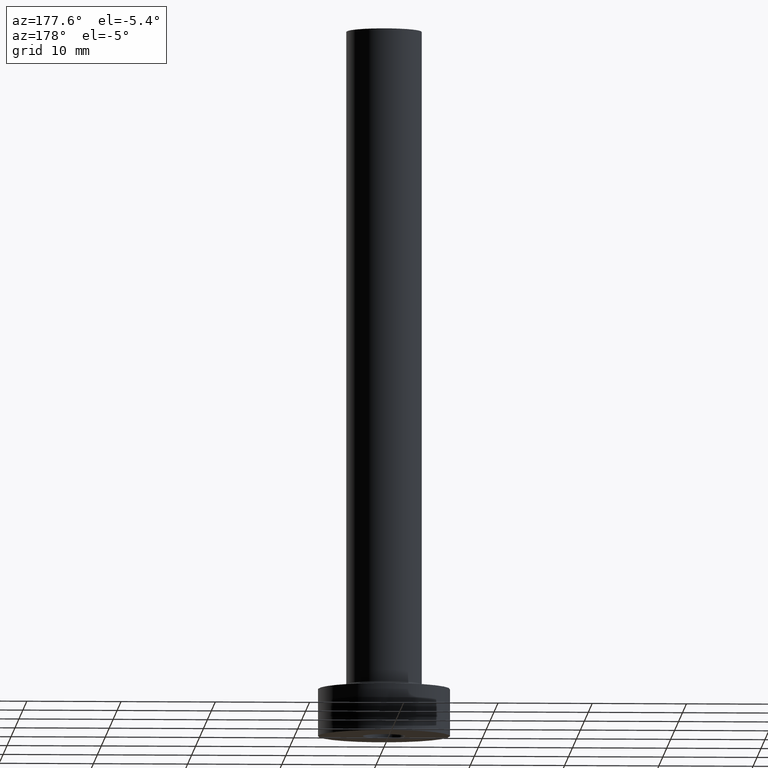
[diagram: clean part render]
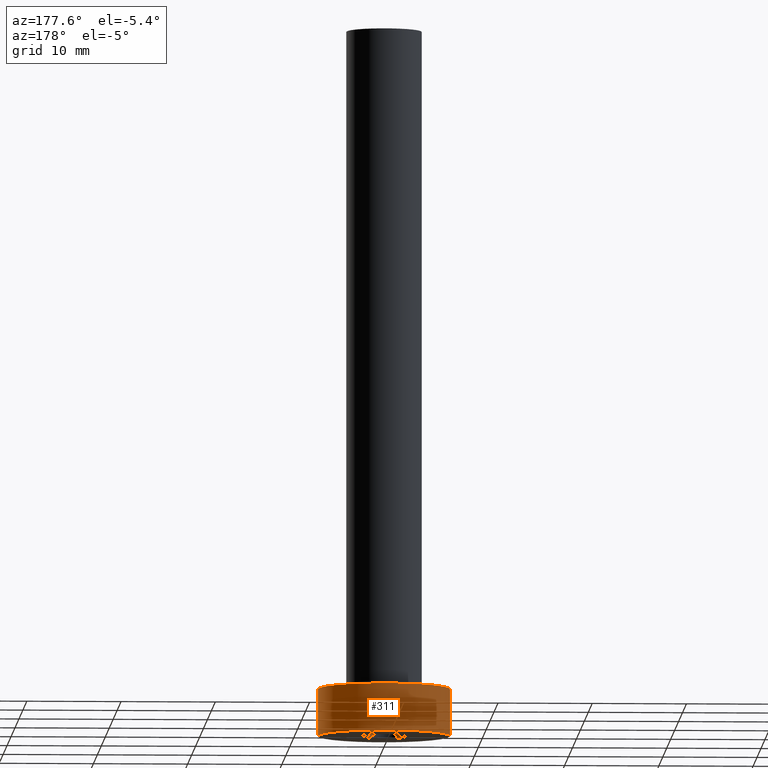
[diagram: same view with one face highlighted and labeled with its STEP entity id]
A machine part, auxiliary view. The second image highlights one B-rep face of the part: STEP entity #311.
In plain terms, the highlighted cylindrical surface (partial cylindrical patch) has radius 7 mm, axis along (-0, -0, -1).
Its self-contained STEP definition (entity closure, byte-faithful):
#37 = ORIENTED_EDGE ( 'NONE', *, *, #124, .T. ) ;
#44 = EDGE_CURVE ( 'NONE', #303, #93, #165, .T. ) ;
#67 = CIRCLE ( 'NONE', #238, 7.000000000000000000 ) ;
#81 = FACE_OUTER_BOUND ( 'NONE', #274, .T. ) ;
#82 = DIRECTION ( 'NONE',  ( -0.000000000000000000, -0.000000000000000000, -1.000000000000000000 ) ) ;
#93 = VERTEX_POINT ( 'NONE', #256 ) ;
#124 = EDGE_CURVE ( 'NONE', #392, #201, #67, .T. ) ;
#130 = DIRECTION ( 'NONE',  ( 0.000000000000000000, 0.000000000000000000, 1.000000000000000000 ) ) ;
#158 = DIRECTION ( 'NONE',  ( -1.000000000000000000, 0.000000000000000000, 0.000000000000000000 ) ) ;
#165 = CIRCLE ( 'NONE', #285, 7.000000000000000000 ) ;
#180 = EDGE_CURVE ( 'NONE', #303, #392, #228, .T. ) ;
#182 = ORIENTED_EDGE ( 'NONE', *, *, #430, .F. ) ;
#200 = CYLINDRICAL_SURFACE ( 'NONE', #346, 7.000000000000000000 ) ;
#201 = VERTEX_POINT ( 'NONE', #406 ) ;
#223 = DIRECTION ( 'NONE',  ( -0.000000000000000000, -0.000000000000000000, -1.000000000000000000 ) ) ;
#228 = LINE ( 'NONE', #442, #403 ) ;
#235 = DIRECTION ( 'NONE',  ( -0.000000000000000000, -0.000000000000000000, -1.000000000000000000 ) ) ;
#238 = AXIS2_PLACEMENT_3D ( 'NONE', #332, #293, #439 ) ;
#256 = CARTESIAN_POINT ( 'NONE',  ( -7.000000000000000000, 0.000000000000000000, 5.000000000000000000 ) ) ;
#273 = CARTESIAN_POINT ( 'NONE',  ( 7.000000000000000000, 8.572527594031473190E-16, 5.000000000000000000 ) ) ;
#274 = EDGE_LOOP ( 'NONE', ( #396, #448, #37, #182 ) ) ;
#275 = VECTOR ( 'NONE', #223, 1000.000000000000000 ) ;
#285 = AXIS2_PLACEMENT_3D ( 'NONE', #287, #130, #382 ) ;
#287 = CARTESIAN_POINT ( 'NONE',  ( 0.000000000000000000, 0.000000000000000000, 5.000000000000000000 ) ) ;
#293 = DIRECTION ( 'NONE',  ( 0.000000000000000000, 0.000000000000000000, 1.000000000000000000 ) ) ;
#303 = VERTEX_POINT ( 'NONE', #273 ) ;
#308 = CARTESIAN_POINT ( 'NONE',  ( -7.000000000000000000, 0.000000000000000000, 5.000000000000000000 ) ) ;
#311 = ADVANCED_FACE ( 'NONE', ( #81 ), #200, .T. ) ;
#332 = CARTESIAN_POINT ( 'NONE',  ( 0.000000000000000000, 0.000000000000000000, 0.000000000000000000 ) ) ;
#338 = CARTESIAN_POINT ( 'NONE',  ( 0.000000000000000000, 0.000000000000000000, 5.000000000000000000 ) ) ;
#342 = LINE ( 'NONE', #308, #275 ) ;
#346 = AXIS2_PLACEMENT_3D ( 'NONE', #338, #82, #158 ) ;
#351 = CARTESIAN_POINT ( 'NONE',  ( 7.000000000000000000, 8.572527594031473190E-16, 0.000000000000000000 ) ) ;
#382 = DIRECTION ( 'NONE',  ( 1.000000000000000000, 0.000000000000000000, 0.000000000000000000 ) ) ;
#392 = VERTEX_POINT ( 'NONE', #351 ) ;
#396 = ORIENTED_EDGE ( 'NONE', *, *, #44, .F. ) ;
#403 = VECTOR ( 'NONE', #235, 1000.000000000000000 ) ;
#406 = CARTESIAN_POINT ( 'NONE',  ( -7.000000000000000000, 0.000000000000000000, 0.000000000000000000 ) ) ;
#430 = EDGE_CURVE ( 'NONE', #93, #201, #342, .T. ) ;
#439 = DIRECTION ( 'NONE',  ( 1.000000000000000000, 0.000000000000000000, 0.000000000000000000 ) ) ;
#442 = CARTESIAN_POINT ( 'NONE',  ( 7.000000000000000000, 8.572527594031473190E-16, 5.000000000000000000 ) ) ;
#448 = ORIENTED_EDGE ( 'NONE', *, *, #180, .T. ) ;